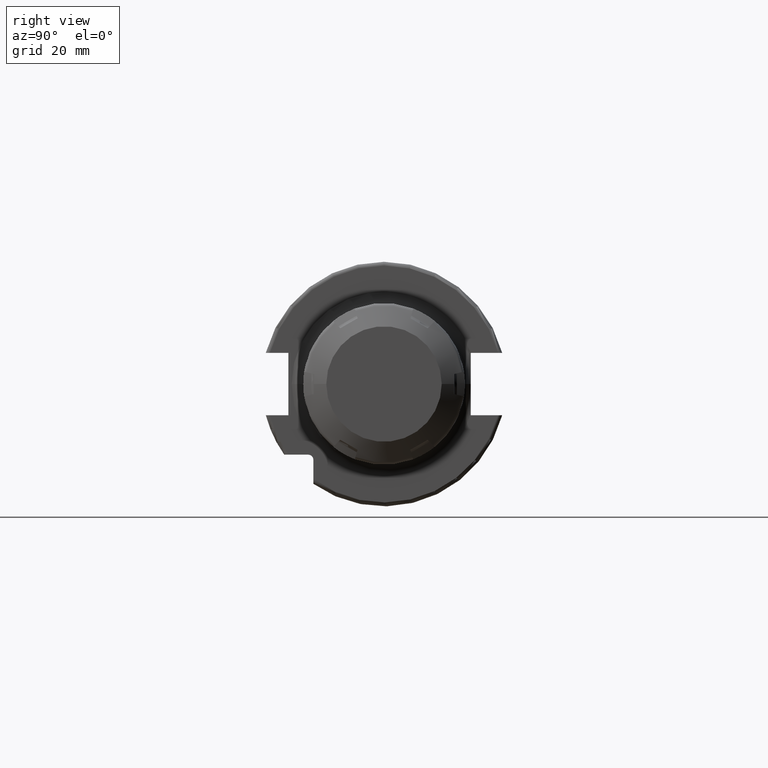
[diagram: clean part render]
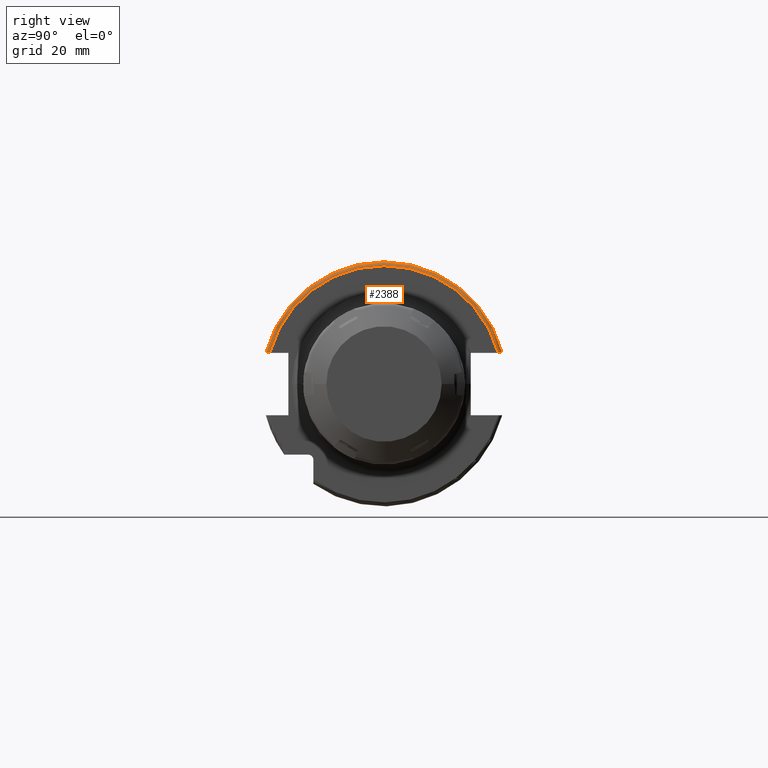
[diagram: same view with one face highlighted and labeled with its STEP entity id]
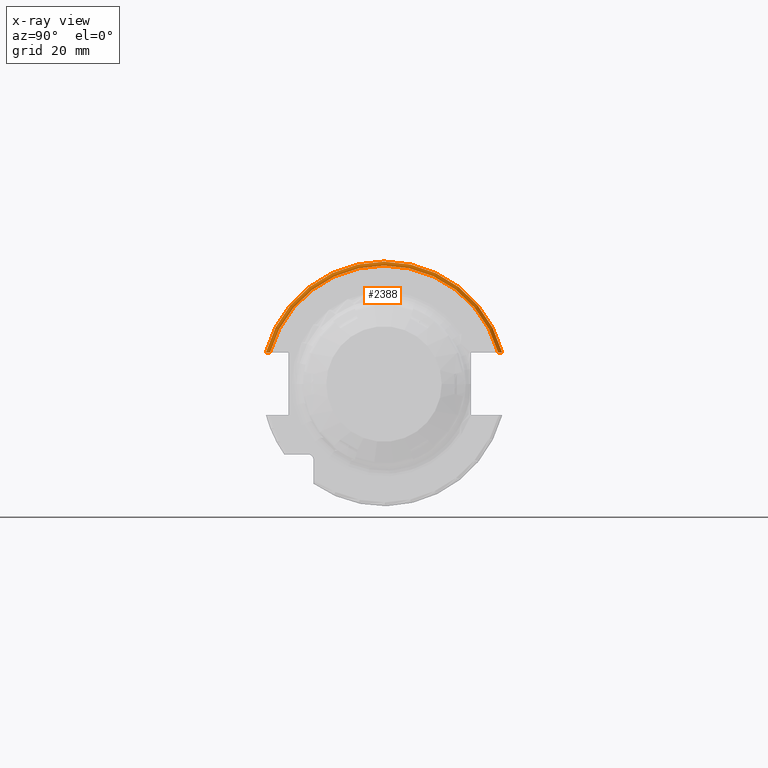
[diagram: x-ray of the same camera — body ghosted, the highlighted face saturated]
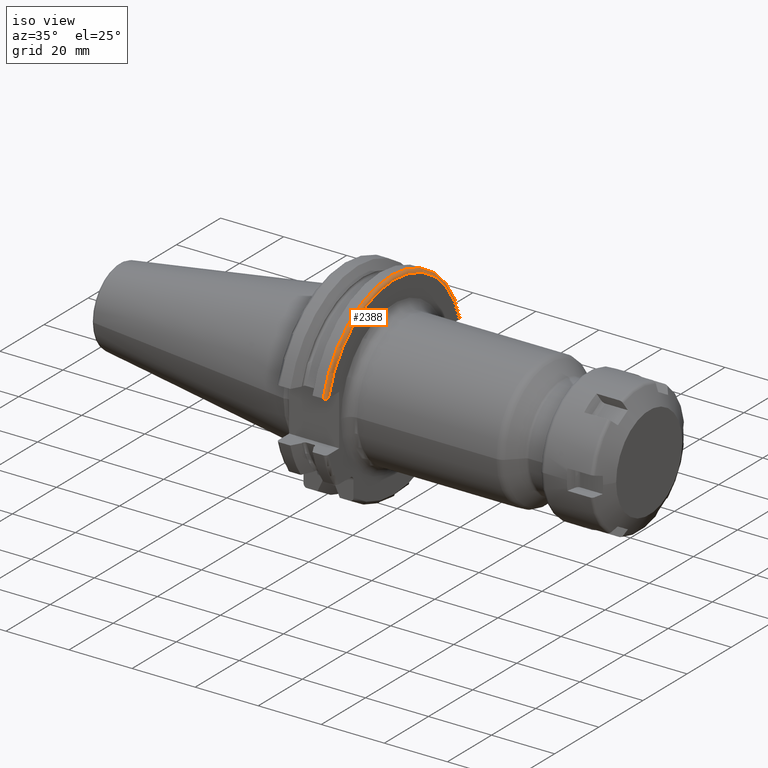
[diagram: same view with one face highlighted and labeled with its STEP entity id]
A machine part, right view. The second image highlights one B-rep face of the part: STEP entity #2388.
The next image is the same camera in x-ray: the body ghosted, the highlighted face saturated — about 0% of this face is hidden behind the body in this view.
A second angle (iso view) of the same face is appended — the face is thin or edge-on in the first view.
In plain terms, the highlighted toroidal blend (fillet) surface has major radius 30.7625 mm and minor (blend) radius 1 mm.
Its self-contained STEP definition (entity closure, byte-faithful):
#672=CARTESIAN_POINT('',(1.905E1,2.967695075728E1,8.1E0));
#673=CARTESIAN_POINT('',(1.905E1,2.975534544469E1,8.1E0));
#674=CARTESIAN_POINT('',(1.903327439626E1,2.990764711142E1,8.1E0));
#675=CARTESIAN_POINT('',(1.895996891946E1,3.012703601742E1,8.1E0));
#676=CARTESIAN_POINT('',(1.884140031799E1,3.032417656220E1,8.1E0));
#677=CARTESIAN_POINT('',(1.868299781019E1,3.048994814949E1,8.1E0));
#678=CARTESIAN_POINT('',(1.849140267654E1,3.061604720054E1,8.1E0));
#679=CARTESIAN_POINT('',(1.827601722220E1,3.069451682863E1,8.1E0));
#680=CARTESIAN_POINT('',(1.812684136073E1,3.071231684927E1,8.1E0));
#681=CARTESIAN_POINT('',(1.805E1,3.071231684927E1,8.1E0));
#683=CARTESIAN_POINT('',(1.905E1,0.E0,0.E0));
#684=DIRECTION('',(1.E0,0.E0,0.E0));
#685=DIRECTION('',(0.E0,9.647119303464E-1,2.633075985372E-1));
#686=AXIS2_PLACEMENT_3D('',#683,#684,#685);
#688=CARTESIAN_POINT('',(1.805E1,-3.071231684927E1,8.1E0));
#689=CARTESIAN_POINT('',(1.812702529647E1,-3.071231684927E1,8.1E0));
#690=CARTESIAN_POINT('',(1.827656518037E1,-3.069444719907E1,8.1E0));
#691=CARTESIAN_POINT('',(1.849273698584E1,-3.061544862934E1,8.1E0));
#692=CARTESIAN_POINT('',(1.868460186607E1,-3.048863686818E1,8.1E0));
#693=CARTESIAN_POINT('',(1.884263679922E1,-3.032251203229E1,8.1E0));
#694=CARTESIAN_POINT('',(1.896052984725E1,-3.012566774399E1,8.1E0));
#695=CARTESIAN_POINT('',(1.903334281973E1,-2.990707436768E1,8.1E0));
#696=CARTESIAN_POINT('',(1.905E1,-2.975515277820E1,8.1E0));
#697=CARTESIAN_POINT('',(1.905E1,-2.967695075728E1,8.1E0));
#840=CARTESIAN_POINT('',(1.805E1,0.E0,0.E0));
#841=DIRECTION('',(1.E0,0.E0,0.E0));
#842=DIRECTION('',(0.E0,9.669363825036E-1,2.550177095632E-1));
#843=AXIS2_PLACEMENT_3D('',#840,#841,#842);
#1432=CARTESIAN_POINT('',(1.905E1,-2.967695075728E1,8.1E0));
#1433=VERTEX_POINT('',#1432);
#1436=CARTESIAN_POINT('',(1.805E1,3.071231684927E1,8.1E0));
#1437=VERTEX_POINT('',#1436);
#1440=CARTESIAN_POINT('',(1.805E1,-3.071231684927E1,8.1E0));
#1441=VERTEX_POINT('',#1440);
#1471=VERTEX_POINT('',#672);
#2375=CARTESIAN_POINT('',(1.805E1,0.E0,0.E0));
#2376=DIRECTION('',(1.E0,0.E0,0.E0));
#2377=DIRECTION('',(0.E0,-1.E0,0.E0));
#2378=AXIS2_PLACEMENT_3D('',#2375,#2376,#2377);
#2379=TOROIDAL_SURFACE('',#2378,3.07625E1,1.E0);
#2380=ORIENTED_EDGE('',*,*,#2112,.F.);
#2381=ORIENTED_EDGE('',*,*,#1803,.T.);
#2383=ORIENTED_EDGE('',*,*,#2382,.F.);
#2385=ORIENTED_EDGE('',*,*,#2384,.F.);
#2386=EDGE_LOOP('',(#2380,#2381,#2383,#2385));
#2387=FACE_OUTER_BOUND('',#2386,.F.);
#2388=ADVANCED_FACE('',(#2387),#2379,.T.);
#682=B_SPLINE_CURVE_WITH_KNOTS('',3,(#672,#673,#674,#675,#676,#677,#678,#679,
#680,#681),.UNSPECIFIED.,.F.,.F.,(4,1,1,1,1,1,1,4),(0.E0,1.428571428571E-1,
2.857142857143E-1,4.285714285714E-1,5.714285714286E-1,7.142857142857E-1,
8.571428571429E-1,1.E0),.UNSPECIFIED.);
#687=CIRCLE('',#686,3.07625E1);
#698=B_SPLINE_CURVE_WITH_KNOTS('',3,(#688,#689,#690,#691,#692,#693,#694,#695,
#696,#697),.UNSPECIFIED.,.F.,.F.,(4,1,1,1,1,1,1,4),(0.E0,1.428571428571E-1,
2.857142857143E-1,4.285714285714E-1,5.714285714286E-1,7.142857142857E-1,
8.571428571429E-1,1.E0),.UNSPECIFIED.);
#844=CIRCLE('',#843,3.17625E1);
#1803=EDGE_CURVE('',#1471,#1433,#687,.T.);
#2112=EDGE_CURVE('',#1471,#1437,#682,.T.);
#2382=EDGE_CURVE('',#1441,#1433,#698,.T.);
#2384=EDGE_CURVE('',#1437,#1441,#844,.T.);